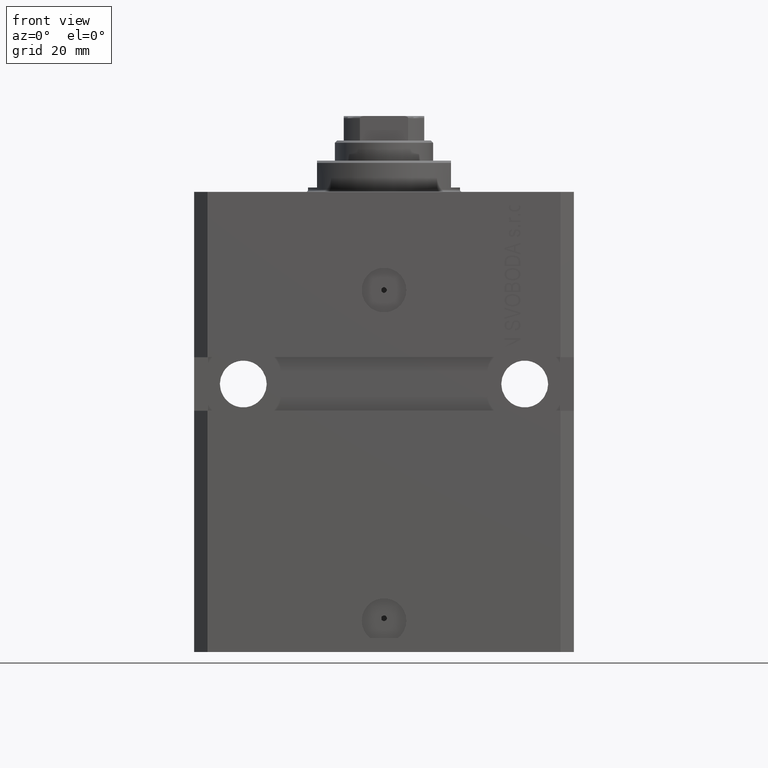
[diagram: clean part render]
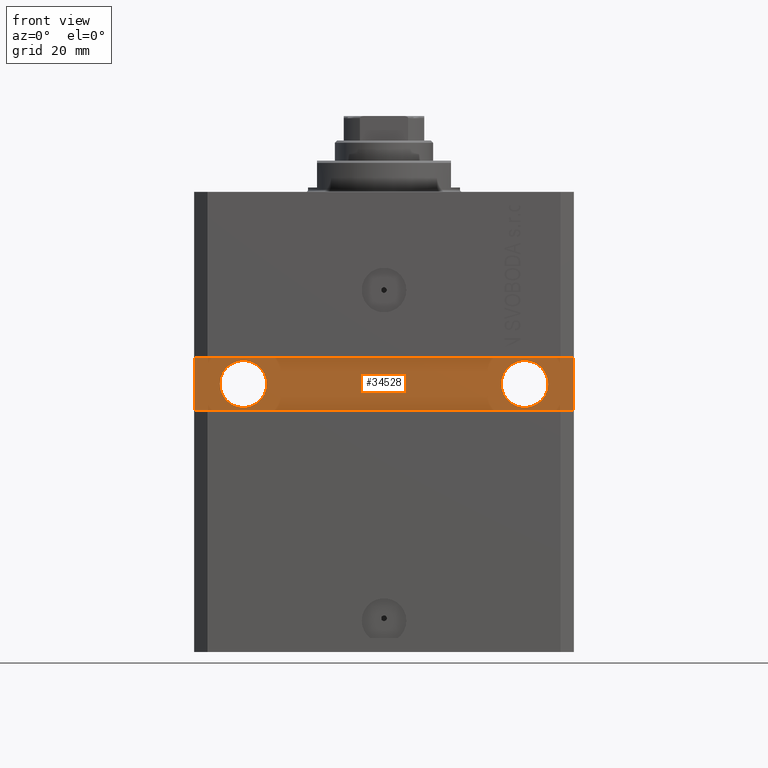
[diagram: same view with one face highlighted and labeled with its STEP entity id]
A machine part, front view. The second image highlights one B-rep face of the part: STEP entity #34528.
In plain terms, the highlighted planar face has unit normal (0, -1, 0).
Its self-contained STEP definition (entity closure, byte-faithful):
#229 = CARTESIAN_POINT ( 'NONE',  ( -42.50000000000000000, -28.50000000000000711, -48.99999999999999289 ) ) ;
#1926 = VERTEX_POINT ( 'NONE', #19982 ) ;
#2321 = ORIENTED_EDGE ( 'NONE', *, *, #15836, .F. ) ;
#2504 = CARTESIAN_POINT ( 'NONE',  ( -42.50000000000000000, -28.50000000000000711, -37.00000000000000711 ) ) ;
#3366 = EDGE_CURVE ( 'NONE', #29457, #14438, #7172, .T. ) ;
#3408 = CARTESIAN_POINT ( 'NONE',  ( -36.74999999999998579, -28.50000000000000355, -43.00000000000000000 ) ) ;
#3665 = CARTESIAN_POINT ( 'NONE',  ( -31.49999999999998579, -28.50000000000000355, -43.00000000000000000 ) ) ;
#3714 = VERTEX_POINT ( 'NONE', #2504 ) ;
#4363 = EDGE_LOOP ( 'NONE', ( #21034, #36877 ) ) ;
#4378 = ORIENTED_EDGE ( 'NONE', *, *, #43793, .T. ) ;
#4757 = DIRECTION ( 'NONE',  ( 1.000000000000000000, 0.000000000000000000, 0.000000000000000000 ) ) ;
#5026 = ORIENTED_EDGE ( 'NONE', *, *, #43499, .T. ) ;
#5323 = CARTESIAN_POINT ( 'NONE',  ( 42.50000000000001421, -28.49999999999999289, -49.00000000000000000 ) ) ;
#5519 = CARTESIAN_POINT ( 'NONE',  ( -42.50000000000000000, -28.50000000000000711, -48.99999999999999289 ) ) ;
#5852 = CARTESIAN_POINT ( 'NONE',  ( -42.50000000000000000, -28.50000000000000711, -37.00000000000000711 ) ) ;
#6360 = AXIS2_PLACEMENT_3D ( 'NONE', #8418, #19863, #4757 ) ;
#7172 = CIRCLE ( 'NONE', #9512, 5.249999999999997335 ) ;
#8418 = CARTESIAN_POINT ( 'NONE',  ( -31.49999999999998579, -28.50000000000000355, -43.00000000000000000 ) ) ;
#8623 = CARTESIAN_POINT ( 'NONE',  ( 42.50000000000001421, -28.49999999999999289, -36.99999999999997868 ) ) ;
#9512 = AXIS2_PLACEMENT_3D ( 'NONE', #35405, #16439, #30788 ) ;
#9702 = FACE_BOUND ( 'NONE', #29966, .T. ) ;
#9768 = EDGE_LOOP ( 'NONE', ( #47637, #5026, #4378, #29415 ) ) ;
#10267 = DIRECTION ( 'NONE',  ( 1.000000000000000000, 0.000000000000000000, 0.000000000000000000 ) ) ;
#10508 = DIRECTION ( 'NONE',  ( 1.101411730780568590E-16, -1.000000000000000000, 0.000000000000000000 ) ) ;
#10718 = DIRECTION ( 'NONE',  ( 1.000000000000000000, 1.632680918566406300E-16, -8.163404592832031500E-17 ) ) ;
#11422 = LINE ( 'NONE', #229, #43201 ) ;
#11774 = LINE ( 'NONE', #8623, #37851 ) ;
#12296 = CARTESIAN_POINT ( 'NONE',  ( 26.25000000000001776, -28.49999999999999645, -43.00000000000000000 ) ) ;
#12869 = DIRECTION ( 'NONE',  ( 1.000000000000000000, 1.632680918566406300E-16, 0.000000000000000000 ) ) ;
#13683 = DIRECTION ( 'NONE',  ( 1.037025423586453699E-16, -1.000000000000000000, 1.848892746611746419E-32 ) ) ;
#13924 = CARTESIAN_POINT ( 'NONE',  ( 31.50000000000001421, -28.49999999999999645, -43.00000000000000000 ) ) ;
#14438 = VERTEX_POINT ( 'NONE', #46692 ) ;
#15836 = EDGE_CURVE ( 'NONE', #14438, #29457, #24581, .T. ) ;
#16439 = DIRECTION ( 'NONE',  ( 1.037025423586453699E-16, -1.000000000000000000, 1.848892746611746419E-32 ) ) ;
#16805 = DIRECTION ( 'NONE',  ( 0.000000000000000000, 0.000000000000000000, -1.000000000000000000 ) ) ;
#17244 = FACE_OUTER_BOUND ( 'NONE', #9768, .T. ) ;
#18414 = EDGE_CURVE ( 'NONE', #3714, #39282, #36244, .T. ) ;
#19640 = CARTESIAN_POINT ( 'NONE',  ( 42.50000000000001421, -28.49999999999999289, -49.00000000000000000 ) ) ;
#19863 = DIRECTION ( 'NONE',  ( 1.101411730780568590E-16, -1.000000000000000000, 0.000000000000000000 ) ) ;
#19982 = CARTESIAN_POINT ( 'NONE',  ( -26.24999999999998934, -28.50000000000000355, -43.00000000000000000 ) ) ;
#20657 = CARTESIAN_POINT ( 'NONE',  ( 4.790119779726142858E-15, -28.50000000000000000, 0.000000000000000000 ) ) ;
#21034 = ORIENTED_EDGE ( 'NONE', *, *, #23822, .F. ) ;
#22669 = ORIENTED_EDGE ( 'NONE', *, *, #3366, .F. ) ;
#23269 = LINE ( 'NONE', #19640, #26983 ) ;
#23822 = EDGE_CURVE ( 'NONE', #1926, #35437, #33529, .T. ) ;
#24041 = DIRECTION ( 'NONE',  ( 1.632680918566406300E-16, -1.000000000000000000, 0.000000000000000000 ) ) ;
#24581 = CIRCLE ( 'NONE', #26122, 5.249999999999997335 ) ;
#25190 = CARTESIAN_POINT ( 'NONE',  ( 42.50000000000001421, -28.49999999999999289, -36.99999999999997868 ) ) ;
#26122 = AXIS2_PLACEMENT_3D ( 'NONE', #13924, #13683, #10267 ) ;
#26983 = VECTOR ( 'NONE', #34457, 1000.000000000000000 ) ;
#27100 = DIRECTION ( 'NONE',  ( -1.000000000000000000, -1.632680918566406300E-16, -3.265361837132812600E-16 ) ) ;
#29415 = ORIENTED_EDGE ( 'NONE', *, *, #18414, .T. ) ;
#29457 = VERTEX_POINT ( 'NONE', #12296 ) ;
#29966 = EDGE_LOOP ( 'NONE', ( #2321, #22669 ) ) ;
#30608 = CIRCLE ( 'NONE', #43848, 5.249999999999997335 ) ;
#30788 = DIRECTION ( 'NONE',  ( 1.000000000000000000, 0.000000000000000000, 0.000000000000000000 ) ) ;
#31356 = FACE_BOUND ( 'NONE', #4363, .T. ) ;
#32375 = EDGE_CURVE ( 'NONE', #35437, #1926, #30608, .T. ) ;
#32416 = DIRECTION ( 'NONE',  ( 1.000000000000000000, 0.000000000000000000, 0.000000000000000000 ) ) ;
#33358 = VECTOR ( 'NONE', #16805, 1000.000000000000000 ) ;
#33529 = CIRCLE ( 'NONE', #6360, 5.249999999999997335 ) ;
#34320 = VERTEX_POINT ( 'NONE', #5323 ) ;
#34457 = DIRECTION ( 'NONE',  ( 0.000000000000000000, 0.000000000000000000, 1.000000000000000000 ) ) ;
#34528 = ADVANCED_FACE ( 'NONE', ( #9702, #31356, #17244 ), #42537, .T. ) ;
#35405 = CARTESIAN_POINT ( 'NONE',  ( 31.50000000000001421, -28.49999999999999645, -43.00000000000000000 ) ) ;
#35437 = VERTEX_POINT ( 'NONE', #3408 ) ;
#35458 = EDGE_CURVE ( 'NONE', #39282, #34320, #11422, .T. ) ;
#36244 = LINE ( 'NONE', #5852, #33358 ) ;
#36877 = ORIENTED_EDGE ( 'NONE', *, *, #32375, .F. ) ;
#37851 = VECTOR ( 'NONE', #27100, 1000.000000000000000 ) ;
#39282 = VERTEX_POINT ( 'NONE', #5519 ) ;
#42537 = PLANE ( 'NONE',  #47811 ) ;
#43201 = VECTOR ( 'NONE', #10718, 1000.000000000000000 ) ;
#43499 = EDGE_CURVE ( 'NONE', #34320, #44897, #23269, .T. ) ;
#43793 = EDGE_CURVE ( 'NONE', #44897, #3714, #11774, .T. ) ;
#43848 = AXIS2_PLACEMENT_3D ( 'NONE', #3665, #10508, #32416 ) ;
#44897 = VERTEX_POINT ( 'NONE', #25190 ) ;
#46692 = CARTESIAN_POINT ( 'NONE',  ( 36.75000000000001421, -28.49999999999999645, -43.00000000000000000 ) ) ;
#47637 = ORIENTED_EDGE ( 'NONE', *, *, #35458, .T. ) ;
#47811 = AXIS2_PLACEMENT_3D ( 'NONE', #20657, #24041, #12869 ) ;